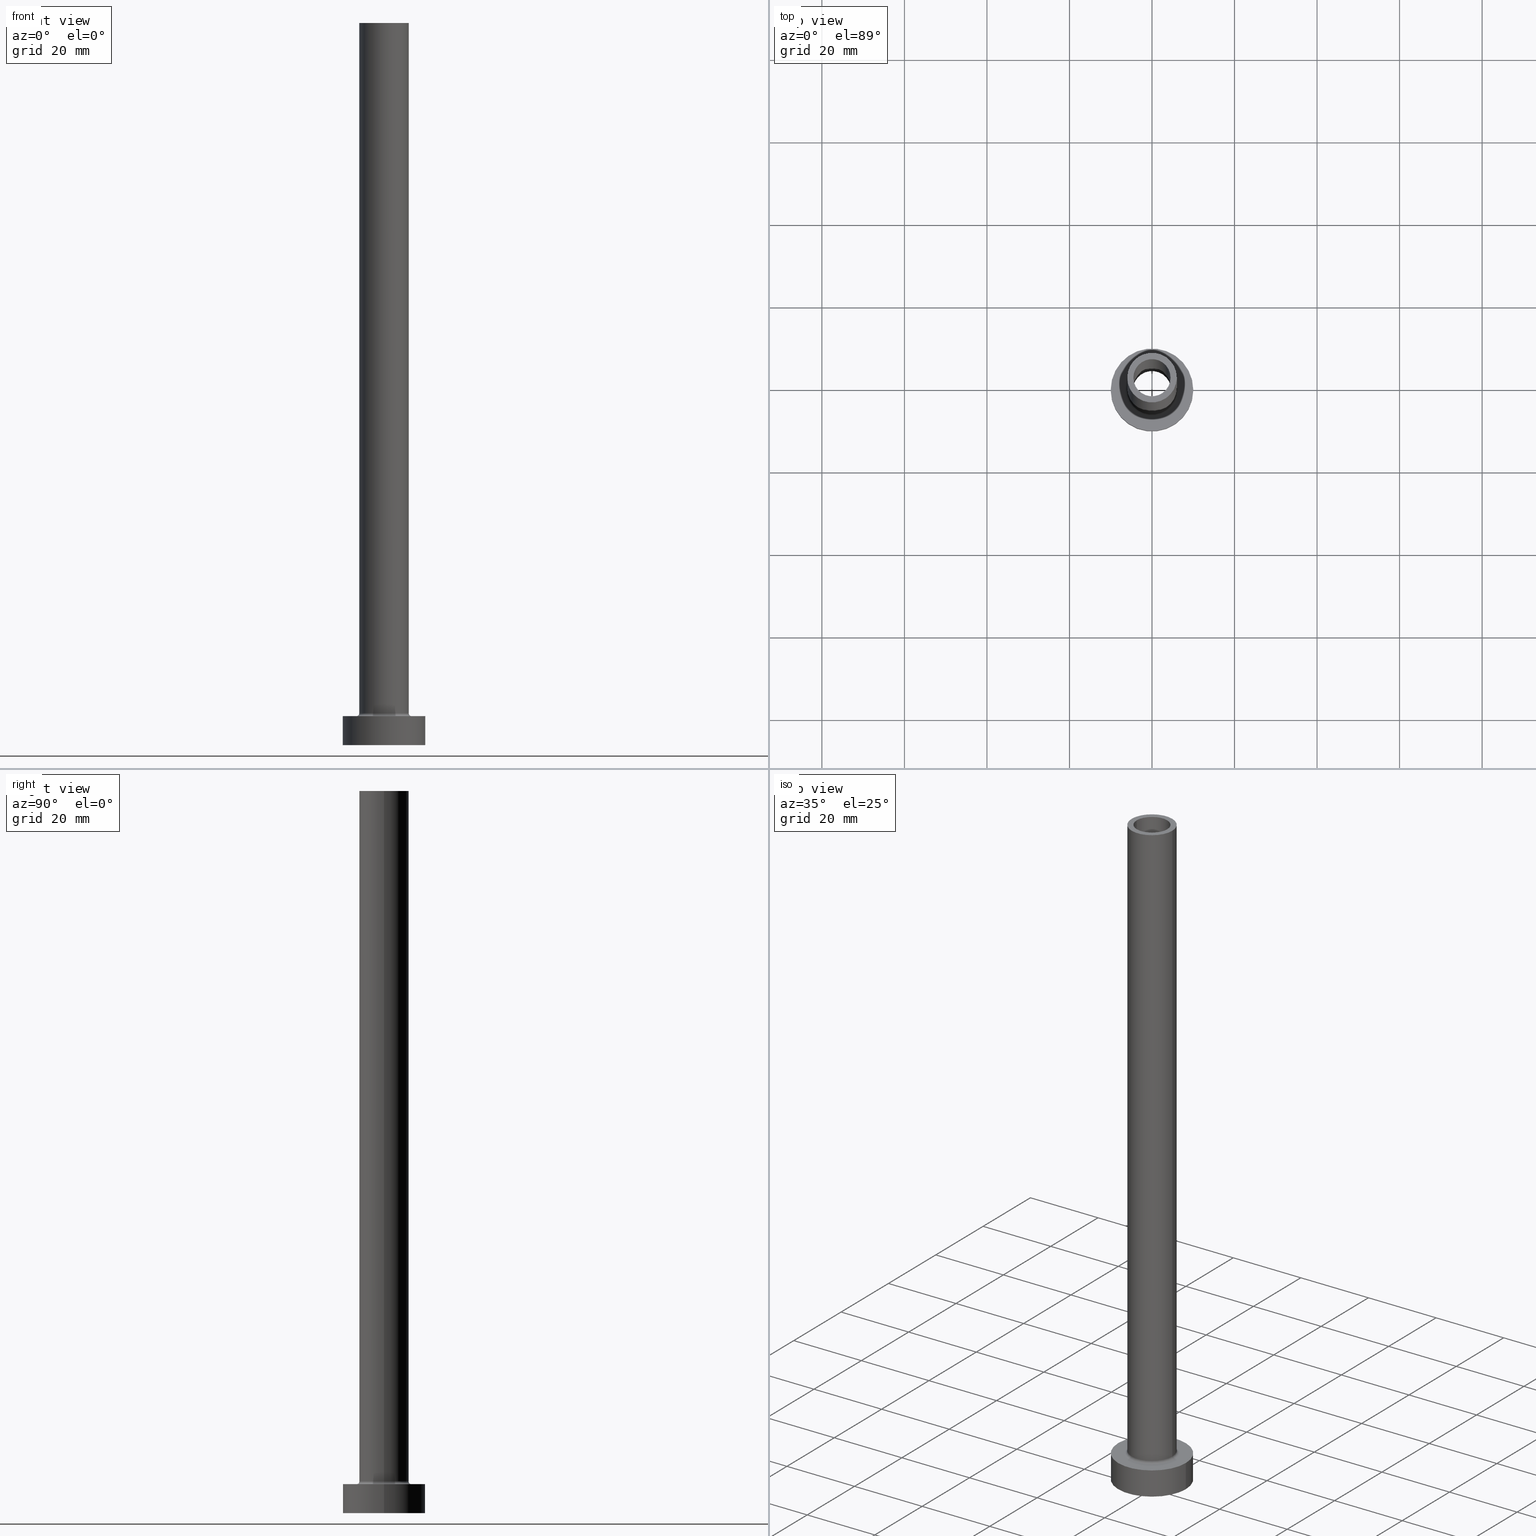
[diagram: canonical four-view strip — front | top / right | iso, engineering-drawing reading convention]
A machine part, canonical four-view strip (front | top / right | iso — engineering-drawing reading convention). The complete STEP part file that produces these views, byte-faithful:
ISO-10303-21;
HEADER;
FILE_DESCRIPTION (( 'STEP AP203' ),
    '1' );
FILE_NAME ('53af.STEP',
    '2023-02-13T11:03:01',
    ( '' ),
    ( '' ),
    'SwSTEP 2.0',
    'SolidWorks 2019',
    '' );
FILE_SCHEMA (( 'CONFIG_CONTROL_DESIGN' ));
ENDSEC;

DATA;
#1 = DIRECTION ( 'NONE',  ( 1.000000000000000000, 0.000000000000000000, 0.000000000000000000 ) ) ;
#2 = ORIENTED_EDGE ( 'NONE', *, *, #107, .F. ) ;
#3 = AXIS2_PLACEMENT_3D ( 'NONE', #393, #31, #396 ) ;
#4 = ORIENTED_EDGE ( 'NONE', *, *, #173, .T. ) ;
#5 = CARTESIAN_POINT ( 'NONE',  ( 0.000000000000000000, 0.000000000000000000, 0.000000000000000000 ) ) ;
#6 = CC_DESIGN_DATE_AND_TIME_ASSIGNMENT ( #68, #354, ( #351 ) ) ;
#7 = ORIENTED_EDGE ( 'NONE', *, *, #218, .T. ) ;
#8 = FACE_OUTER_BOUND ( 'NONE', #71, .T. ) ;
#9 = DIRECTION ( 'NONE',  ( 1.000000000000000000, 0.000000000000000000, 0.000000000000000000 ) ) ;
#10 = APPROVAL_ROLE ( '' ) ;
#11 = CIRCLE ( 'NONE', #50, 0.7000000000000000666 ) ;
#12 = ORGANIZATION ( 'NEUR�EN�', 'NEUR�EN�', '' ) ;
#13 = DIRECTION ( 'NONE',  ( 0.000000000000000000, 0.000000000000000000, 1.000000000000000000 ) ) ;
#14 = DIRECTION ( 'NONE',  ( 1.000000000000000000, 0.000000000000000000, 0.000000000000000000 ) ) ;
#15 = EDGE_CURVE ( 'NONE', #183, #130, #445, .T. ) ;
#16 = DIRECTION ( 'NONE',  ( 1.000000000000000000, 0.000000000000000000, 0.000000000000000000 ) ) ;
#17 = ORIENTED_EDGE ( 'NONE', *, *, #318, .T. ) ;
#18 = CYLINDRICAL_SURFACE ( 'NONE', #274, 4.650000000000000355 ) ;
#19 = ORIENTED_EDGE ( 'NONE', *, *, #51, .T. ) ;
#20 = TOROIDAL_SURFACE ( 'NONE', #210, 6.700000000000001066, 0.6999999999999999556 ) ;
#21 = EDGE_CURVE ( 'NONE', #289, #57, #344, .T. ) ;
#22 = CARTESIAN_POINT ( 'NONE',  ( 0.000000000000000000, 0.000000000000000000, 175.0000000000000284 ) ) ;
#23 = ORIENTED_EDGE ( 'NONE', *, *, #173, .F. ) ;
#24 = DIRECTION ( 'NONE',  ( -1.000000000000000000, 0.000000000000000000, 0.000000000000000000 ) ) ;
#25 = CC_DESIGN_SECURITY_CLASSIFICATION ( #431, ( #189 ) ) ;
#26 = CARTESIAN_POINT ( 'NONE',  ( 4.500000000000000000, 5.510910596163088569E-16, 130.0000000000000000 ) ) ;
#27 = PRODUCT ( '53af', '53af', '', ( #249 ) ) ;
#28 = EDGE_CURVE ( 'NONE', #365, #199, #169, .T. ) ;
#29 = CYLINDRICAL_SURFACE ( 'NONE', #370, 4.500000000000000000 ) ;
#30 = CARTESIAN_POINT ( 'NONE',  ( 4.500000000000000000, 5.510910596163088569E-16, 175.0000000000000284 ) ) ;
#31 = DIRECTION ( 'NONE',  ( 0.000000000000000000, 0.000000000000000000, 1.000000000000000000 ) ) ;
#32 = DIRECTION ( 'NONE',  ( 1.000000000000000000, 0.000000000000000000, -0.000000000000000000 ) ) ;
#33 = VECTOR ( 'NONE', #363, 1000.000000000000000 ) ;
#34 = PERSON_AND_ORGANIZATION ( #95, #12 ) ;
#35 = EDGE_CURVE ( 'NONE', #130, #215, #146, .T. ) ;
#36 = COORDINATED_UNIVERSAL_TIME_OFFSET ( 1, 0, .AHEAD. ) ;
#37 = ORIENTED_EDGE ( 'NONE', *, *, #231, .F. ) ;
#38 = VERTEX_POINT ( 'NONE', #262 ) ;
#39 = EDGE_CURVE ( 'NONE', #91, #362, #405, .T. ) ;
#40 = DIRECTION ( 'NONE',  ( 1.000000000000000000, 0.000000000000000000, 0.000000000000000000 ) ) ;
#41 = AXIS2_PLACEMENT_3D ( 'NONE', #181, #317, #62 ) ;
#42 = AXIS2_PLACEMENT_3D ( 'NONE', #239, #213, #347 ) ;
#43 = CIRCLE ( 'NONE', #378, 4.500000000000000000 ) ;
#44 = ORIENTED_EDGE ( 'NONE', *, *, #100, .F. ) ;
#45 = DIRECTION ( 'NONE',  ( 1.000000000000000000, 0.000000000000000000, 0.000000000000000000 ) ) ;
#46 = ORIENTED_EDGE ( 'NONE', *, *, #28, .F. ) ;
#47 = DIRECTION ( 'NONE',  ( 0.000000000000000000, 0.000000000000000000, 1.000000000000000000 ) ) ;
#48 = DIRECTION ( 'NONE',  ( 1.000000000000000000, 0.000000000000000000, 0.000000000000000000 ) ) ;
#49 = ORIENTED_EDGE ( 'NONE', *, *, #276, .F. ) ;
#50 = AXIS2_PLACEMENT_3D ( 'NONE', #452, #101, #137 ) ;
#51 = EDGE_CURVE ( 'NONE', #73, #442, #454, .T. ) ;
#52 = CARTESIAN_POINT ( 'NONE',  ( 10.00000000000000000, 1.224646799147353256E-15, 7.000000000000000000 ) ) ;
#53 = VERTEX_POINT ( 'NONE', #368 ) ;
#54 = DIRECTION ( 'NONE',  ( -1.000000000000000000, 0.000000000000000000, 0.000000000000000000 ) ) ;
#55 = DIRECTION ( 'NONE',  ( 0.000000000000000000, 0.000000000000000000, -1.000000000000000000 ) ) ;
#56 = EDGE_CURVE ( 'NONE', #73, #197, #424, .T. ) ;
#57 = VERTEX_POINT ( 'NONE', #350 ) ;
#58 = CIRCLE ( 'NONE', #97, 6.000000000000000888 ) ;
#59 = DIRECTION ( 'NONE',  ( -0.000000000000000000, -0.000000000000000000, -1.000000000000000000 ) ) ;
#60 = CYLINDRICAL_SURFACE ( 'NONE', #455, 6.000000000000000888 ) ;
#61 = APPLICATION_CONTEXT ( 'configuration controlled 3d designs of mechanical parts and assemblies' ) ;
#62 = DIRECTION ( 'NONE',  ( 1.000000000000000000, 0.000000000000000000, -0.000000000000000000 ) ) ;
#63 = ADVANCED_FACE ( 'NONE', ( #251 ), #74, .F. ) ;
#64 =( GEOMETRIC_REPRESENTATION_CONTEXT ( 3 ) GLOBAL_UNCERTAINTY_ASSIGNED_CONTEXT ( ( #85 ) ) GLOBAL_UNIT_ASSIGNED_CONTEXT ( ( #72, #112, #352 ) ) REPRESENTATION_CONTEXT ( 'NONE', 'WORKASPACE' ) );
#65 = DIRECTION ( 'NONE',  ( 1.000000000000000000, 0.000000000000000000, 0.000000000000000000 ) ) ;
#66 = DIRECTION ( 'NONE',  ( 0.000000000000000000, 0.000000000000000000, 1.000000000000000000 ) ) ;
#67 = APPROVAL ( #144, 'NEUR�EN�' ) ;
#68 = DATE_AND_TIME ( #321, #143 ) ;
#69 = LOCAL_TIME ( 12, 3, 1.000000000000000000, #129 ) ;
#70 = DATE_AND_TIME ( #390, #149 ) ;
#71 = EDGE_LOOP ( 'NONE', ( #7, #260 ) ) ;
#72 =( LENGTH_UNIT ( ) NAMED_UNIT ( * ) SI_UNIT ( .MILLI., .METRE. ) );
#73 = VERTEX_POINT ( 'NONE', #312 ) ;
#74 = CYLINDRICAL_SURFACE ( 'NONE', #202, 4.650000000000000355 ) ;
#75 = VECTOR ( 'NONE', #94, 1000.000000000000000 ) ;
#76 = CC_DESIGN_DATE_AND_TIME_ASSIGNMENT ( #330, #435, ( #431 ) ) ;
#77 = DIRECTION ( 'NONE',  ( 0.000000000000000000, 0.000000000000000000, -1.000000000000000000 ) ) ;
#78 = ORIENTED_EDGE ( 'NONE', *, *, #21, .F. ) ;
#79 = CARTESIAN_POINT ( 'NONE',  ( 0.000000000000000000, 0.000000000000000000, 175.0000000000000284 ) ) ;
#80 = EDGE_LOOP ( 'NONE', ( #432, #449, #377, #398 ) ) ;
#81 = FACE_BOUND ( 'NONE', #357, .T. ) ;
#82 = ADVANCED_FACE ( 'NONE', ( #174 ), #141, .T. ) ;
#83 = VECTOR ( 'NONE', #55, 1000.000000000000000 ) ;
#84 = CARTESIAN_POINT ( 'NONE',  ( -10.00000000000000000, 0.000000000000000000, 7.000000000000000000 ) ) ;
#85 = UNCERTAINTY_MEASURE_WITH_UNIT (LENGTH_MEASURE( 1.000000000000000082E-05 ), #72, 'distance_accuracy_value', 'NONE');
#86 = LINE ( 'NONE', #397, #267 ) ;
#87 = PERSON_AND_ORGANIZATION_ROLE ( 'creator' ) ;
#88 = ORIENTED_EDGE ( 'NONE', *, *, #116, .T. ) ;
#89 = AXIS2_PLACEMENT_3D ( 'NONE', #90, #327, #443 ) ;
#90 = CARTESIAN_POINT ( 'NONE',  ( 0.000000000000000000, 0.000000000000000000, 7.000000000000000000 ) ) ;
#91 = VERTEX_POINT ( 'NONE', #139 ) ;
#92 = ADVANCED_FACE ( 'NONE', ( #395 ), #60, .T. ) ;
#93 = FACE_OUTER_BOUND ( 'NONE', #411, .T. ) ;
#94 = DIRECTION ( 'NONE',  ( -0.000000000000000000, -0.000000000000000000, -1.000000000000000000 ) ) ;
#95 = PERSON ( 'NEUR�EN�', 'NEUR�EN�', 'NEUR�EN�', ('NEUR�EN�'), ('NEUR�EN�'), ('NEUR�EN�') ) ;
#96 = ORIENTED_EDGE ( 'NONE', *, *, #35, .F. ) ;
#97 = AXIS2_PLACEMENT_3D ( 'NONE', #102, #458, #114 ) ;
#98 = VECTOR ( 'NONE', #77, 1000.000000000000000 ) ;
#99 = DIRECTION ( 'NONE',  ( 0.000000000000000000, 0.000000000000000000, 1.000000000000000000 ) ) ;
#100 = EDGE_CURVE ( 'NONE', #197, #53, #154, .T. ) ;
#101 = DIRECTION ( 'NONE',  ( 1.224646799147353207E-16, 1.000000000000000000, -0.000000000000000000 ) ) ;
#102 = CARTESIAN_POINT ( 'NONE',  ( 0.000000000000000000, 0.000000000000000000, 175.0000000000000284 ) ) ;
#103 = AXIS2_PLACEMENT_3D ( 'NONE', #79, #221, #266 ) ;
#104 = APPROVAL_PERSON_ORGANIZATION ( #34, #394, #286 ) ;
#105 = DIRECTION ( 'NONE',  ( -1.000000000000000000, 0.000000000000000000, 0.000000000000000000 ) ) ;
#106 = DIRECTION ( 'NONE',  ( 0.000000000000000000, 0.000000000000000000, -1.000000000000000000 ) ) ;
#107 = EDGE_CURVE ( 'NONE', #197, #289, #389, .T. ) ;
#108 = COORDINATED_UNIVERSAL_TIME_OFFSET ( 1, 0, .AHEAD. ) ;
#109 = PERSON_AND_ORGANIZATION ( #95, #12 ) ;
#110 = AXIS2_PLACEMENT_3D ( 'NONE', #371, #401, #45 ) ;
#111 = AXIS2_PLACEMENT_3D ( 'NONE', #151, #288, #434 ) ;
#112 =( NAMED_UNIT ( * ) PLANE_ANGLE_UNIT ( ) SI_UNIT ( $, .RADIAN. ) );
#113 = ORIENTED_EDGE ( 'NONE', *, *, #184, .T. ) ;
#114 = DIRECTION ( 'NONE',  ( 1.000000000000000000, 0.000000000000000000, 0.000000000000000000 ) ) ;
#115 = COORDINATED_UNIVERSAL_TIME_OFFSET ( 1, 0, .AHEAD. ) ;
#116 = EDGE_CURVE ( 'NONE', #215, #130, #131, .T. ) ;
#117 = ORIENTED_EDGE ( 'NONE', *, *, #35, .T. ) ;
#118 = CARTESIAN_POINT ( 'NONE',  ( 0.000000000000000000, 0.000000000000000000, 130.0000000000000000 ) ) ;
#119 = PERSON_AND_ORGANIZATION ( #95, #12 ) ;
#120 = ORIENTED_EDGE ( 'NONE', *, *, #235, .F. ) ;
#121 = FACE_BOUND ( 'NONE', #292, .T. ) ;
#122 = AXIS2_PLACEMENT_3D ( 'NONE', #220, #160, #290 ) ;
#123 = ORIENTED_EDGE ( 'NONE', *, *, #15, .T. ) ;
#124 = CARTESIAN_POINT ( 'NONE',  ( 0.000000000000000000, 0.000000000000000000, 7.700000000000012612 ) ) ;
#125 = VERTEX_POINT ( 'NONE', #208 ) ;
#126 = CARTESIAN_POINT ( 'NONE',  ( -10.00000000000000000, 0.000000000000000000, 0.000000000000000000 ) ) ;
#127 = EDGE_LOOP ( 'NONE', ( #161, #285, #359, #234 ) ) ;
#128 = DIRECTION ( 'NONE',  ( 0.000000000000000000, 0.000000000000000000, 1.000000000000000000 ) ) ;
#129 = COORDINATED_UNIVERSAL_TIME_OFFSET ( 1, 0, .AHEAD. ) ;
#130 = VERTEX_POINT ( 'NONE', #26 ) ;
#131 = CIRCLE ( 'NONE', #175, 4.500000000000000000 ) ;
#132 = ADVANCED_BREP_SHAPE_REPRESENTATION ( '53af', ( #157, #3 ), #64 ) ;
#133 = CIRCLE ( 'NONE', #205, 4.650000000000000355 ) ;
#134 = CYLINDRICAL_SURFACE ( 'NONE', #331, 6.000000000000000888 ) ;
#135 = VERTEX_POINT ( 'NONE', #310 ) ;
#136 = ORIENTED_EDGE ( 'NONE', *, *, #436, .F. ) ;
#137 = DIRECTION ( 'NONE',  ( -1.000000000000000000, 1.224646799147353454E-16, 0.000000000000000000 ) ) ;
#138 = CARTESIAN_POINT ( 'NONE',  ( 6.000000000000000888, 7.347880794884119736E-16, 7.700000000000012612 ) ) ;
#139 = CARTESIAN_POINT ( 'NONE',  ( -10.00000000000000000, 0.000000000000000000, 7.000000000000000000 ) ) ;
#140 = VECTOR ( 'NONE', #461, 1000.000000000000000 ) ;
#141 = CYLINDRICAL_SURFACE ( 'NONE', #172, 10.00000000000000000 ) ;
#142 = EDGE_CURVE ( 'NONE', #38, #320, #383, .T. ) ;
#143 = LOCAL_TIME ( 12, 3, 1.000000000000000000, #115 ) ;
#144 = APPROVAL_STATUS ( 'not_yet_approved' ) ;
#145 = DIRECTION ( 'NONE',  ( -0.000000000000000000, -0.000000000000000000, -1.000000000000000000 ) ) ;
#146 = CIRCLE ( 'NONE', #163, 4.500000000000000000 ) ;
#147 = EDGE_LOOP ( 'NONE', ( #37, #136 ) ) ;
#148 = EDGE_CURVE ( 'NONE', #442, #73, #58, .T. ) ;
#149 = LOCAL_TIME ( 12, 3, 1.000000000000000000, #108 ) ;
#150 = CALENDAR_DATE ( 2023, 13, 2 ) ;
#151 = CARTESIAN_POINT ( 'NONE',  ( 0.000000000000000000, 0.000000000000000000, 7.000000000000000000 ) ) ;
#152 = ORIENTED_EDGE ( 'NONE', *, *, #56, .F. ) ;
#153 = CYLINDRICAL_SURFACE ( 'NONE', #103, 4.500000000000000000 ) ;
#154 = CIRCLE ( 'NONE', #415, 6.000000000000000888 ) ;
#155 = PERSON_AND_ORGANIZATION ( #95, #12 ) ;
#156 = EDGE_CURVE ( 'NONE', #53, #57, #11, .T. ) ;
#157 = MANIFOLD_SOLID_BREP ( 'Odebrat vysunut�m4', #224 ) ;
#158 = CIRCLE ( 'NONE', #418, 10.00000000000000000 ) ;
#159 = EDGE_LOOP ( 'NONE', ( #152, #186, #309, #287 ) ) ;
#160 = DIRECTION ( 'NONE',  ( 0.000000000000000000, 0.000000000000000000, 1.000000000000000000 ) ) ;
#161 = ORIENTED_EDGE ( 'NONE', *, *, #400, .T. ) ;
#162 = CYLINDRICAL_SURFACE ( 'NONE', #111, 10.00000000000000000 ) ;
#163 = AXIS2_PLACEMENT_3D ( 'NONE', #440, #414, #14 ) ;
#164 = ORIENTED_EDGE ( 'NONE', *, *, #339, .F. ) ;
#165 = DIRECTION ( 'NONE',  ( 0.000000000000000000, 0.000000000000000000, -1.000000000000000000 ) ) ;
#166 = CC_DESIGN_PERSON_AND_ORGANIZATION_ASSIGNMENT ( #109, #425, ( #351 ) ) ;
#167 = ORIENTED_EDGE ( 'NONE', *, *, #313, .F. ) ;
#168 = AXIS2_PLACEMENT_3D ( 'NONE', #402, #301, #410 ) ;
#169 = LINE ( 'NONE', #340, #201 ) ;
#170 = DESIGN_CONTEXT ( 'detailed design', #61, 'design' ) ;
#171 = CARTESIAN_POINT ( 'NONE',  ( 6.000000000000000888, 7.347880794884119736E-16, 175.0000000000000284 ) ) ;
#172 = AXIS2_PLACEMENT_3D ( 'NONE', #176, #145, #358 ) ;
#173 = EDGE_CURVE ( 'NONE', #57, #289, #256, .T. ) ;
#174 = FACE_OUTER_BOUND ( 'NONE', #392, .T. ) ;
#175 = AXIS2_PLACEMENT_3D ( 'NONE', #282, #66, #65 ) ;
#176 = CARTESIAN_POINT ( 'NONE',  ( 0.000000000000000000, 0.000000000000000000, 7.000000000000000000 ) ) ;
#177 = ADVANCED_FACE ( 'NONE', ( #384, #273 ), #419, .F. ) ;
#178 = DIRECTION ( 'NONE',  ( 1.000000000000000000, 0.000000000000000000, 0.000000000000000000 ) ) ;
#179 = DIRECTION ( 'NONE',  ( 0.000000000000000000, -1.000000000000000000, 0.000000000000000000 ) ) ;
#180 = APPLICATION_PROTOCOL_DEFINITION ( 'international standard', 'config_control_design', 1994, #404 ) ;
#181 = CARTESIAN_POINT ( 'NONE',  ( 0.000000000000000000, 0.000000000000000000, 175.0000000000000284 ) ) ;
#182 = DIRECTION ( 'NONE',  ( 1.000000000000000000, 0.000000000000000000, 0.000000000000000000 ) ) ;
#183 = VERTEX_POINT ( 'NONE', #30 ) ;
#184 = EDGE_CURVE ( 'NONE', #355, #38, #237, .T. ) ;
#185 = CARTESIAN_POINT ( 'NONE',  ( 0.000000000000000000, 0.000000000000000000, 175.0000000000000284 ) ) ;
#186 = ORIENTED_EDGE ( 'NONE', *, *, #148, .F. ) ;
#187 = AXIS2_PLACEMENT_3D ( 'NONE', #216, #453, #451 ) ;
#188 = CARTESIAN_POINT ( 'NONE',  ( -4.500000000000000000, 0.000000000000000000, 175.0000000000000284 ) ) ;
#189 = PRODUCT_DEFINITION_FORMATION_WITH_SPECIFIED_SOURCE ( 'LIBOVOLN�', '', #27, .NOT_KNOWN. ) ;
#190 = ORIENTED_EDGE ( 'NONE', *, *, #142, .T. ) ;
#191 = PLANE ( 'NONE',  #89 ) ;
#192 = ORIENTED_EDGE ( 'NONE', *, *, #39, .F. ) ;
#193 = CARTESIAN_POINT ( 'NONE',  ( 6.700000000000001066, 0.000000000000000000, 7.000000000000006217 ) ) ;
#194 = DATE_AND_TIME ( #335, #69 ) ;
#195 = DIRECTION ( 'NONE',  ( 1.000000000000000000, 0.000000000000000000, -0.000000000000000000 ) ) ;
#196 = AXIS2_PLACEMENT_3D ( 'NONE', #124, #297, #16 ) ;
#197 = VERTEX_POINT ( 'NONE', #138 ) ;
#198 = CARTESIAN_POINT ( 'NONE',  ( 0.000000000000000000, 0.000000000000000000, 0.000000000000000000 ) ) ;
#199 = VERTEX_POINT ( 'NONE', #420 ) ;
#200 = CARTESIAN_POINT ( 'NONE',  ( 0.000000000000000000, 0.000000000000000000, 175.0000000000000284 ) ) ;
#201 = VECTOR ( 'NONE', #270, 1000.000000000000000 ) ;
#202 = AXIS2_PLACEMENT_3D ( 'NONE', #244, #106, #24 ) ;
#203 = DIRECTION ( 'NONE',  ( 1.000000000000000000, 0.000000000000000000, 0.000000000000000000 ) ) ;
#204 = ORIENTED_EDGE ( 'NONE', *, *, #156, .F. ) ;
#205 = AXIS2_PLACEMENT_3D ( 'NONE', #118, #303, #447 ) ;
#206 = ADVANCED_FACE ( 'NONE', ( #238, #382 ), #279, .T. ) ;
#207 = ORIENTED_EDGE ( 'NONE', *, *, #28, .T. ) ;
#208 = CARTESIAN_POINT ( 'NONE',  ( -4.500000000000000000, 0.000000000000000000, 175.0000000000000284 ) ) ;
#209 = CARTESIAN_POINT ( 'NONE',  ( -4.500000000000000000, 0.000000000000000000, 130.0000000000000000 ) ) ;
#210 = AXIS2_PLACEMENT_3D ( 'NONE', #245, #349, #182 ) ;
#211 = DIRECTION ( 'NONE',  ( -1.000000000000000000, 0.000000000000000000, 0.000000000000000000 ) ) ;
#212 = DIRECTION ( 'NONE',  ( 0.000000000000000000, 0.000000000000000000, 1.000000000000000000 ) ) ;
#213 = DIRECTION ( 'NONE',  ( -0.000000000000000000, -0.000000000000000000, -1.000000000000000000 ) ) ;
#214 = ORIENTED_EDGE ( 'NONE', *, *, #148, .T. ) ;
#215 = VERTEX_POINT ( 'NONE', #209 ) ;
#216 = CARTESIAN_POINT ( 'NONE',  ( 0.000000000000000000, 0.000000000000000000, 0.000000000000000000 ) ) ;
#217 = ORIENTED_EDGE ( 'NONE', *, *, #318, .F. ) ;
#218 = EDGE_CURVE ( 'NONE', #91, #365, #311, .T. ) ;
#219 = TOROIDAL_SURFACE ( 'NONE', #168, 6.700000000000001066, 0.6999999999999999556 ) ;
#220 = CARTESIAN_POINT ( 'NONE',  ( 0.000000000000000000, 0.000000000000000000, 7.000000000000000000 ) ) ;
#221 = DIRECTION ( 'NONE',  ( 0.000000000000000000, 0.000000000000000000, -1.000000000000000000 ) ) ;
#222 = ORIENTED_EDGE ( 'NONE', *, *, #307, .F. ) ;
#223 = DIRECTION ( 'NONE',  ( -0.000000000000000000, -0.000000000000000000, -1.000000000000000000 ) ) ;
#224 = CLOSED_SHELL ( 'NONE', ( #429, #63, #422, #92, #82, #380, #241, #283, #412, #206, #264, #417, #177, #246 ) ) ;
#225 = APPROVAL_DATE_TIME ( #194, #376 ) ;
#226 = DIRECTION ( 'NONE',  ( 1.000000000000000000, 0.000000000000000000, 0.000000000000000000 ) ) ;
#227 = DIRECTION ( 'NONE',  ( -0.000000000000000000, -0.000000000000000000, -1.000000000000000000 ) ) ;
#228 = SECURITY_CLASSIFICATION_LEVEL ( 'unclassified' ) ;
#229 = LOCAL_TIME ( 12, 3, 1.000000000000000000, #298 ) ;
#230 = ORIENTED_EDGE ( 'NONE', *, *, #39, .T. ) ;
#231 = EDGE_CURVE ( 'NONE', #125, #183, #369, .T. ) ;
#232 = LINE ( 'NONE', #188, #33 ) ;
#233 = EDGE_LOOP ( 'NONE', ( #308, #336 ) ) ;
#234 = ORIENTED_EDGE ( 'NONE', *, *, #184, .F. ) ;
#235 = EDGE_CURVE ( 'NONE', #135, #320, #263, .T. ) ;
#236 = ORIENTED_EDGE ( 'NONE', *, *, #276, .T. ) ;
#237 = LINE ( 'NONE', #381, #304 ) ;
#238 = FACE_BOUND ( 'NONE', #147, .T. ) ;
#239 = CARTESIAN_POINT ( 'NONE',  ( 0.000000000000000000, 0.000000000000000000, 7.000000000000000000 ) ) ;
#240 = AXIS2_PLACEMENT_3D ( 'NONE', #353, #99, #32 ) ;
#241 = ADVANCED_FACE ( 'NONE', ( #81, #8 ), #191, .T. ) ;
#242 = AXIS2_PLACEMENT_3D ( 'NONE', #5, #13, #40 ) ;
#243 = CARTESIAN_POINT ( 'NONE',  ( -6.000000000000000888, 0.000000000000000000, 175.0000000000000284 ) ) ;
#244 = CARTESIAN_POINT ( 'NONE',  ( 0.000000000000000000, 0.000000000000000000, 143.1521861300697935 ) ) ;
#245 = CARTESIAN_POINT ( 'NONE',  ( 0.000000000000000000, 0.000000000000000000, 7.700000000000012612 ) ) ;
#246 = ADVANCED_FACE ( 'NONE', ( #366 ), #153, .F. ) ;
#247 = APPROVAL_STATUS ( 'not_yet_approved' ) ;
#248 = AXIS2_PLACEMENT_3D ( 'NONE', #346, #179, #387 ) ;
#249 = MECHANICAL_CONTEXT ( 'NONE', #404, 'mechanical' ) ;
#250 = EDGE_LOOP ( 'NONE', ( #88, #117 ) ) ;
#251 = FACE_OUTER_BOUND ( 'NONE', #127, .T. ) ;
#252 = FACE_OUTER_BOUND ( 'NONE', #333, .T. ) ;
#253 = EDGE_CURVE ( 'NONE', #365, #91, #360, .T. ) ;
#254 = PLANE ( 'NONE',  #446 ) ;
#255 = ORIENTED_EDGE ( 'NONE', *, *, #15, .F. ) ;
#256 = CIRCLE ( 'NONE', #42, 6.700000000000001066 ) ;
#257 = CC_DESIGN_APPROVAL ( #376, ( #431 ) ) ;
#258 = FACE_OUTER_BOUND ( 'NONE', #302, .T. ) ;
#259 = CALENDAR_DATE ( 2023, 13, 2 ) ;
#260 = ORIENTED_EDGE ( 'NONE', *, *, #253, .T. ) ;
#261 = DIRECTION ( 'NONE',  ( 0.000000000000000000, 0.000000000000000000, 1.000000000000000000 ) ) ;
#262 = CARTESIAN_POINT ( 'NONE',  ( -4.650000000000000355, 0.000000000000000000, 0.000000000000000000 ) ) ;
#263 = LINE ( 'NONE', #406, #98 ) ;
#264 = ADVANCED_FACE ( 'NONE', ( #437 ), #219, .F. ) ;
#265 = ORIENTED_EDGE ( 'NONE', *, *, #116, .F. ) ;
#266 = DIRECTION ( 'NONE',  ( -1.000000000000000000, 0.000000000000000000, 0.000000000000000000 ) ) ;
#267 = VECTOR ( 'NONE', #227, 1000.000000000000000 ) ;
#268 = ORIENTED_EDGE ( 'NONE', *, *, #253, .F. ) ;
#269 = DIRECTION ( 'NONE',  ( -0.000000000000000000, -0.000000000000000000, -1.000000000000000000 ) ) ;
#270 = DIRECTION ( 'NONE',  ( -0.000000000000000000, -0.000000000000000000, -1.000000000000000000 ) ) ;
#271 = CC_DESIGN_PERSON_AND_ORGANIZATION_ASSIGNMENT ( #291, #407, ( #189 ) ) ;
#272 = DIRECTION ( 'NONE',  ( 0.000000000000000000, 0.000000000000000000, 1.000000000000000000 ) ) ;
#273 = FACE_OUTER_BOUND ( 'NONE', #233, .T. ) ;
#274 = AXIS2_PLACEMENT_3D ( 'NONE', #374, #165, #54 ) ;
#275 = DIRECTION ( 'NONE',  ( 0.000000000000000000, 0.000000000000000000, -1.000000000000000000 ) ) ;
#276 = EDGE_CURVE ( 'NONE', #125, #215, #232, .T. ) ;
#277 = DIRECTION ( 'NONE',  ( -0.000000000000000000, -0.000000000000000000, -1.000000000000000000 ) ) ;
#278 = PERSON_AND_ORGANIZATION ( #95, #12 ) ;
#279 = PLANE ( 'NONE',  #41 ) ;
#280 = LOCAL_TIME ( 12, 3, 1.000000000000000000, #36 ) ;
#281 = APPROVAL_DATE_TIME ( #356, #67 ) ;
#282 = CARTESIAN_POINT ( 'NONE',  ( 0.000000000000000000, 0.000000000000000000, 130.0000000000000000 ) ) ;
#283 = ADVANCED_FACE ( 'NONE', ( #121, #258 ), #254, .F. ) ;
#284 = CARTESIAN_POINT ( 'NONE',  ( 0.000000000000000000, 0.000000000000000000, 130.0000000000000000 ) ) ;
#285 = ORIENTED_EDGE ( 'NONE', *, *, #235, .T. ) ;
#286 = APPROVAL_ROLE ( '' ) ;
#287 = ORIENTED_EDGE ( 'NONE', *, *, #313, .T. ) ;
#288 = DIRECTION ( 'NONE',  ( -0.000000000000000000, -0.000000000000000000, -1.000000000000000000 ) ) ;
#289 = VERTEX_POINT ( 'NONE', #193 ) ;
#290 = DIRECTION ( 'NONE',  ( 1.000000000000000000, 0.000000000000000000, 0.000000000000000000 ) ) ;
#291 = PERSON_AND_ORGANIZATION ( #95, #12 ) ;
#292 = EDGE_LOOP ( 'NONE', ( #433, #222 ) ) ;
#293 = AXIS2_PLACEMENT_3D ( 'NONE', #294, #128, #361 ) ;
#294 = CARTESIAN_POINT ( 'NONE',  ( 0.000000000000000000, 0.000000000000000000, 175.0000000000000284 ) ) ;
#295 = ORIENTED_EDGE ( 'NONE', *, *, #156, .T. ) ;
#296 = CC_DESIGN_PERSON_AND_ORGANIZATION_ASSIGNMENT ( #278, #423, ( #27 ) ) ;
#297 = DIRECTION ( 'NONE',  ( 0.000000000000000000, 0.000000000000000000, 1.000000000000000000 ) ) ;
#298 = COORDINATED_UNIVERSAL_TIME_OFFSET ( 1, 0, .AHEAD. ) ;
#299 = ORIENTED_EDGE ( 'NONE', *, *, #231, .T. ) ;
#300 = AXIS2_PLACEMENT_3D ( 'NONE', #342, #59, #203 ) ;
#301 = DIRECTION ( 'NONE',  ( 0.000000000000000000, 0.000000000000000000, 1.000000000000000000 ) ) ;
#302 = EDGE_LOOP ( 'NONE', ( #217, #164 ) ) ;
#303 = DIRECTION ( 'NONE',  ( 0.000000000000000000, 0.000000000000000000, 1.000000000000000000 ) ) ;
#304 = VECTOR ( 'NONE', #275, 1000.000000000000000 ) ;
#305 = APPROVAL_PERSON_ORGANIZATION ( #119, #376, #10 ) ;
#306 = CIRCLE ( 'NONE', #196, 6.000000000000000888 ) ;
#307 = EDGE_CURVE ( 'NONE', #320, #38, #323, .T. ) ;
#308 = ORIENTED_EDGE ( 'NONE', *, *, #400, .F. ) ;
#309 = ORIENTED_EDGE ( 'NONE', *, *, #364, .T. ) ;
#310 = CARTESIAN_POINT ( 'NONE',  ( 4.650000000000000355, 5.694607616035192869E-16, 130.0000000000000000 ) ) ;
#311 = CIRCLE ( 'NONE', #110, 10.00000000000000000 ) ;
#312 = CARTESIAN_POINT ( 'NONE',  ( 6.000000000000000888, 7.347880794884119736E-16, 175.0000000000000284 ) ) ;
#313 = EDGE_CURVE ( 'NONE', #53, #197, #306, .T. ) ;
#314 = CARTESIAN_POINT ( 'NONE',  ( 0.000000000000000000, 0.000000000000000000, 7.700000000000012612 ) ) ;
#315 = DIRECTION ( 'NONE',  ( 0.000000000000000000, 0.000000000000000000, 1.000000000000000000 ) ) ;
#316 = APPLICATION_PROTOCOL_DEFINITION ( 'international standard', 'config_control_design', 1994, #61 ) ;
#317 = DIRECTION ( 'NONE',  ( 0.000000000000000000, 0.000000000000000000, 1.000000000000000000 ) ) ;
#318 = EDGE_CURVE ( 'NONE', #362, #199, #158, .T. ) ;
#319 = APPROVAL_DATE_TIME ( #70, #394 ) ;
#320 = VERTEX_POINT ( 'NONE', #332 ) ;
#321 = CALENDAR_DATE ( 2023, 13, 2 ) ;
#322 = ORIENTED_EDGE ( 'NONE', *, *, #218, .F. ) ;
#323 = CIRCLE ( 'NONE', #348, 4.650000000000000355 ) ;
#324 = CARTESIAN_POINT ( 'NONE',  ( 0.000000000000000000, 0.000000000000000000, 0.000000000000000000 ) ) ;
#325 = CC_DESIGN_PERSON_AND_ORGANIZATION_ASSIGNMENT ( #403, #372, ( #431 ) ) ;
#326 = EDGE_LOOP ( 'NONE', ( #204, #44, #408, #23 ) ) ;
#327 = DIRECTION ( 'NONE',  ( 0.000000000000000000, 0.000000000000000000, 1.000000000000000000 ) ) ;
#328 = EDGE_LOOP ( 'NONE', ( #167, #295, #78, #2 ) ) ;
#329 = CARTESIAN_POINT ( 'NONE',  ( 0.000000000000000000, 0.000000000000000000, 0.000000000000000000 ) ) ;
#330 = DATE_AND_TIME ( #259, #229 ) ;
#331 = AXIS2_PLACEMENT_3D ( 'NONE', #200, #269, #338 ) ;
#332 = CARTESIAN_POINT ( 'NONE',  ( 4.650000000000000355, 5.694607616035192869E-16, 0.000000000000000000 ) ) ;
#333 = EDGE_LOOP ( 'NONE', ( #299, #123, #265, #49 ) ) ;
#334 = FACE_OUTER_BOUND ( 'NONE', #373, .T. ) ;
#335 = CALENDAR_DATE ( 2023, 13, 2 ) ;
#336 = ORIENTED_EDGE ( 'NONE', *, *, #450, .F. ) ;
#337 = AXIS2_PLACEMENT_3D ( 'NONE', #22, #272, #226 ) ;
#338 = DIRECTION ( 'NONE',  ( -1.000000000000000000, 0.000000000000000000, 0.000000000000000000 ) ) ;
#339 = EDGE_CURVE ( 'NONE', #199, #362, #391, .T. ) ;
#340 = CARTESIAN_POINT ( 'NONE',  ( 10.00000000000000000, 1.224646799147353256E-15, 7.000000000000000000 ) ) ;
#341 = AXIS2_PLACEMENT_3D ( 'NONE', #284, #457, #178 ) ;
#342 = CARTESIAN_POINT ( 'NONE',  ( 0.000000000000000000, 0.000000000000000000, 7.000000000000000000 ) ) ;
#343 = ORIENTED_EDGE ( 'NONE', *, *, #21, .T. ) ;
#344 = CIRCLE ( 'NONE', #300, 6.700000000000001066 ) ;
#345 = PRODUCT_DEFINITION_SHAPE ( 'NONE', 'NONE',  #351 ) ;
#346 = CARTESIAN_POINT ( 'NONE',  ( 6.700000000000001066, 0.000000000000000000, 7.700000000000012612 ) ) ;
#347 = DIRECTION ( 'NONE',  ( 1.000000000000000000, 0.000000000000000000, 0.000000000000000000 ) ) ;
#348 = AXIS2_PLACEMENT_3D ( 'NONE', #329, #223, #9 ) ;
#349 = DIRECTION ( 'NONE',  ( 0.000000000000000000, 0.000000000000000000, 1.000000000000000000 ) ) ;
#350 = CARTESIAN_POINT ( 'NONE',  ( -6.700000000000001066, 8.205133554287267548E-16, 7.000000000000006217 ) ) ;
#351 = PRODUCT_DEFINITION ( 'NEZN�M�', '', #189, #170 ) ;
#352 =( NAMED_UNIT ( * ) SI_UNIT ( $, .STERADIAN. ) SOLID_ANGLE_UNIT ( ) );
#353 = CARTESIAN_POINT ( 'NONE',  ( 0.000000000000000000, 0.000000000000000000, 130.0000000000000000 ) ) ;
#354 = DATE_TIME_ROLE ( 'creation_date' ) ;
#355 = VERTEX_POINT ( 'NONE', #441 ) ;
#356 = DATE_AND_TIME ( #150, #280 ) ;
#357 = EDGE_LOOP ( 'NONE', ( #343, #4 ) ) ;
#358 = DIRECTION ( 'NONE',  ( -1.000000000000000000, 0.000000000000000000, 0.000000000000000000 ) ) ;
#359 = ORIENTED_EDGE ( 'NONE', *, *, #307, .T. ) ;
#360 = CIRCLE ( 'NONE', #122, 10.00000000000000000 ) ;
#361 = DIRECTION ( 'NONE',  ( 1.000000000000000000, 0.000000000000000000, 0.000000000000000000 ) ) ;
#362 = VERTEX_POINT ( 'NONE', #126 ) ;
#363 = DIRECTION ( 'NONE',  ( 0.000000000000000000, 0.000000000000000000, -1.000000000000000000 ) ) ;
#364 = EDGE_CURVE ( 'NONE', #442, #53, #86, .T. ) ;
#365 = VERTEX_POINT ( 'NONE', #52 ) ;
#366 = FACE_OUTER_BOUND ( 'NONE', #448, .T. ) ;
#367 = APPROVAL_STATUS ( 'not_yet_approved' ) ;
#368 = CARTESIAN_POINT ( 'NONE',  ( -6.000000000000000888, 0.000000000000000000, 7.700000000000012612 ) ) ;
#369 = CIRCLE ( 'NONE', #293, 4.500000000000000000 ) ;
#370 = AXIS2_PLACEMENT_3D ( 'NONE', #430, #388, #105 ) ;
#371 = CARTESIAN_POINT ( 'NONE',  ( 0.000000000000000000, 0.000000000000000000, 7.000000000000000000 ) ) ;
#372 = PERSON_AND_ORGANIZATION_ROLE ( 'classification_officer' ) ;
#373 = EDGE_LOOP ( 'NONE', ( #46, #322, #230, #17 ) ) ;
#374 = CARTESIAN_POINT ( 'NONE',  ( 0.000000000000000000, 0.000000000000000000, 143.1521861300697935 ) ) ;
#375 = CARTESIAN_POINT ( 'NONE',  ( 4.500000000000000000, 5.510910596163088569E-16, 175.0000000000000284 ) ) ;
#376 = APPROVAL ( #367, 'NEUR�EN�' ) ;
#377 = ORIENTED_EDGE ( 'NONE', *, *, #100, .T. ) ;
#378 = AXIS2_PLACEMENT_3D ( 'NONE', #185, #212, #1 ) ;
#379 = ORIENTED_EDGE ( 'NONE', *, *, #339, .T. ) ;
#380 = ADVANCED_FACE ( 'NONE', ( #334 ), #162, .T. ) ;
#381 = CARTESIAN_POINT ( 'NONE',  ( -4.650000000000000355, 0.000000000000000000, 143.1521861300697935 ) ) ;
#382 = FACE_OUTER_BOUND ( 'NONE', #416, .T. ) ;
#383 = CIRCLE ( 'NONE', #187, 4.650000000000000355 ) ;
#384 = FACE_BOUND ( 'NONE', #250, .T. ) ;
#385 = CC_DESIGN_PERSON_AND_ORGANIZATION_ASSIGNMENT ( #155, #87, ( #189 ) ) ;
#386 = FACE_OUTER_BOUND ( 'NONE', #328, .T. ) ;
#387 = DIRECTION ( 'NONE',  ( 0.000000000000000000, 0.000000000000000000, -1.000000000000000000 ) ) ;
#388 = DIRECTION ( 'NONE',  ( 0.000000000000000000, 0.000000000000000000, -1.000000000000000000 ) ) ;
#389 = CIRCLE ( 'NONE', #248, 0.7000000000000000666 ) ;
#390 = CALENDAR_DATE ( 2023, 13, 2 ) ;
#391 = CIRCLE ( 'NONE', #242, 10.00000000000000000 ) ;
#392 = EDGE_LOOP ( 'NONE', ( #268, #207, #379, #192 ) ) ;
#393 = CARTESIAN_POINT ( 'NONE',  ( 0.000000000000000000, 0.000000000000000000, 0.000000000000000000 ) ) ;
#394 = APPROVAL ( #247, 'NEUR�EN�' ) ;
#395 = FACE_OUTER_BOUND ( 'NONE', #80, .T. ) ;
#396 = DIRECTION ( 'NONE',  ( 1.000000000000000000, 0.000000000000000000, 0.000000000000000000 ) ) ;
#397 = CARTESIAN_POINT ( 'NONE',  ( -6.000000000000000888, 0.000000000000000000, 175.0000000000000284 ) ) ;
#398 = ORIENTED_EDGE ( 'NONE', *, *, #364, .F. ) ;
#399 = APPROVAL_PERSON_ORGANIZATION ( #460, #67, #427 ) ;
#400 = EDGE_CURVE ( 'NONE', #355, #135, #133, .T. ) ;
#401 = DIRECTION ( 'NONE',  ( 0.000000000000000000, 0.000000000000000000, 1.000000000000000000 ) ) ;
#402 = CARTESIAN_POINT ( 'NONE',  ( 0.000000000000000000, 0.000000000000000000, 7.700000000000012612 ) ) ;
#403 = PERSON_AND_ORGANIZATION ( #95, #12 ) ;
#404 = APPLICATION_CONTEXT ( 'configuration controlled 3d designs of mechanical parts and assemblies' ) ;
#405 = LINE ( 'NONE', #84, #75 ) ;
#406 = CARTESIAN_POINT ( 'NONE',  ( 4.650000000000000355, 5.694607616035192869E-16, 143.1521861300697935 ) ) ;
#407 = PERSON_AND_ORGANIZATION_ROLE ( 'design_supplier' ) ;
#408 = ORIENTED_EDGE ( 'NONE', *, *, #107, .T. ) ;
#409 = CIRCLE ( 'NONE', #341, 4.650000000000000355 ) ;
#410 = DIRECTION ( 'NONE',  ( 1.000000000000000000, 0.000000000000000000, 0.000000000000000000 ) ) ;
#411 = EDGE_LOOP ( 'NONE', ( #120, #428, #113, #190 ) ) ;
#412 = ADVANCED_FACE ( 'NONE', ( #413 ), #134, .T. ) ;
#413 = FACE_OUTER_BOUND ( 'NONE', #159, .T. ) ;
#414 = DIRECTION ( 'NONE',  ( 0.000000000000000000, 0.000000000000000000, 1.000000000000000000 ) ) ;
#415 = AXIS2_PLACEMENT_3D ( 'NONE', #314, #315, #421 ) ;
#416 = EDGE_LOOP ( 'NONE', ( #214, #19 ) ) ;
#417 = ADVANCED_FACE ( 'NONE', ( #93 ), #18, .F. ) ;
#418 = AXIS2_PLACEMENT_3D ( 'NONE', #324, #261, #48 ) ;
#419 = PLANE ( 'NONE',  #240 ) ;
#420 = CARTESIAN_POINT ( 'NONE',  ( 10.00000000000000000, 1.224646799147353256E-15, 0.000000000000000000 ) ) ;
#421 = DIRECTION ( 'NONE',  ( 1.000000000000000000, 0.000000000000000000, 0.000000000000000000 ) ) ;
#422 = ADVANCED_FACE ( 'NONE', ( #386 ), #20, .F. ) ;
#423 = PERSON_AND_ORGANIZATION_ROLE ( 'design_owner' ) ;
#424 = LINE ( 'NONE', #171, #140 ) ;
#425 = PERSON_AND_ORGANIZATION_ROLE ( 'creator' ) ;
#426 = CARTESIAN_POINT ( 'NONE',  ( 0.000000000000000000, 0.000000000000000000, 175.0000000000000284 ) ) ;
#427 = APPROVAL_ROLE ( '' ) ;
#428 = ORIENTED_EDGE ( 'NONE', *, *, #450, .T. ) ;
#429 = ADVANCED_FACE ( 'NONE', ( #252 ), #29, .F. ) ;
#430 = CARTESIAN_POINT ( 'NONE',  ( 0.000000000000000000, 0.000000000000000000, 175.0000000000000284 ) ) ;
#431 = SECURITY_CLASSIFICATION ( '', '', #228 ) ;
#432 = ORIENTED_EDGE ( 'NONE', *, *, #51, .F. ) ;
#433 = ORIENTED_EDGE ( 'NONE', *, *, #142, .F. ) ;
#434 = DIRECTION ( 'NONE',  ( -1.000000000000000000, 0.000000000000000000, 0.000000000000000000 ) ) ;
#435 = DATE_TIME_ROLE ( 'classification_date' ) ;
#436 = EDGE_CURVE ( 'NONE', #183, #125, #43, .T. ) ;
#437 = FACE_OUTER_BOUND ( 'NONE', #326, .T. ) ;
#438 = ORIENTED_EDGE ( 'NONE', *, *, #436, .T. ) ;
#439 = CC_DESIGN_APPROVAL ( #394, ( #189 ) ) ;
#440 = CARTESIAN_POINT ( 'NONE',  ( 0.000000000000000000, 0.000000000000000000, 130.0000000000000000 ) ) ;
#441 = CARTESIAN_POINT ( 'NONE',  ( -4.650000000000000355, 0.000000000000000000, 130.0000000000000000 ) ) ;
#442 = VERTEX_POINT ( 'NONE', #243 ) ;
#443 = DIRECTION ( 'NONE',  ( 1.000000000000000000, 0.000000000000000000, -0.000000000000000000 ) ) ;
#444 = SHAPE_DEFINITION_REPRESENTATION ( #345, #132 ) ;
#445 = LINE ( 'NONE', #375, #83 ) ;
#446 = AXIS2_PLACEMENT_3D ( 'NONE', #198, #47, #195 ) ;
#447 = DIRECTION ( 'NONE',  ( 1.000000000000000000, 0.000000000000000000, 0.000000000000000000 ) ) ;
#448 = EDGE_LOOP ( 'NONE', ( #255, #438, #236, #96 ) ) ;
#449 = ORIENTED_EDGE ( 'NONE', *, *, #56, .T. ) ;
#450 = EDGE_CURVE ( 'NONE', #135, #355, #409, .T. ) ;
#451 = DIRECTION ( 'NONE',  ( 1.000000000000000000, 0.000000000000000000, 0.000000000000000000 ) ) ;
#452 = CARTESIAN_POINT ( 'NONE',  ( -6.700000000000001066, 8.205133554287267548E-16, 7.700000000000012612 ) ) ;
#453 = DIRECTION ( 'NONE',  ( -0.000000000000000000, -0.000000000000000000, -1.000000000000000000 ) ) ;
#454 = CIRCLE ( 'NONE', #337, 6.000000000000000888 ) ;
#455 = AXIS2_PLACEMENT_3D ( 'NONE', #426, #277, #211 ) ;
#456 = PRODUCT_RELATED_PRODUCT_CATEGORY ( 'detail', '', ( #27 ) ) ;
#457 = DIRECTION ( 'NONE',  ( 0.000000000000000000, 0.000000000000000000, 1.000000000000000000 ) ) ;
#458 = DIRECTION ( 'NONE',  ( 0.000000000000000000, 0.000000000000000000, 1.000000000000000000 ) ) ;
#459 = CC_DESIGN_APPROVAL ( #67, ( #351 ) ) ;
#460 = PERSON_AND_ORGANIZATION ( #95, #12 ) ;
#461 = DIRECTION ( 'NONE',  ( -0.000000000000000000, -0.000000000000000000, -1.000000000000000000 ) ) ;
ENDSEC;
END-ISO-10303-21;
